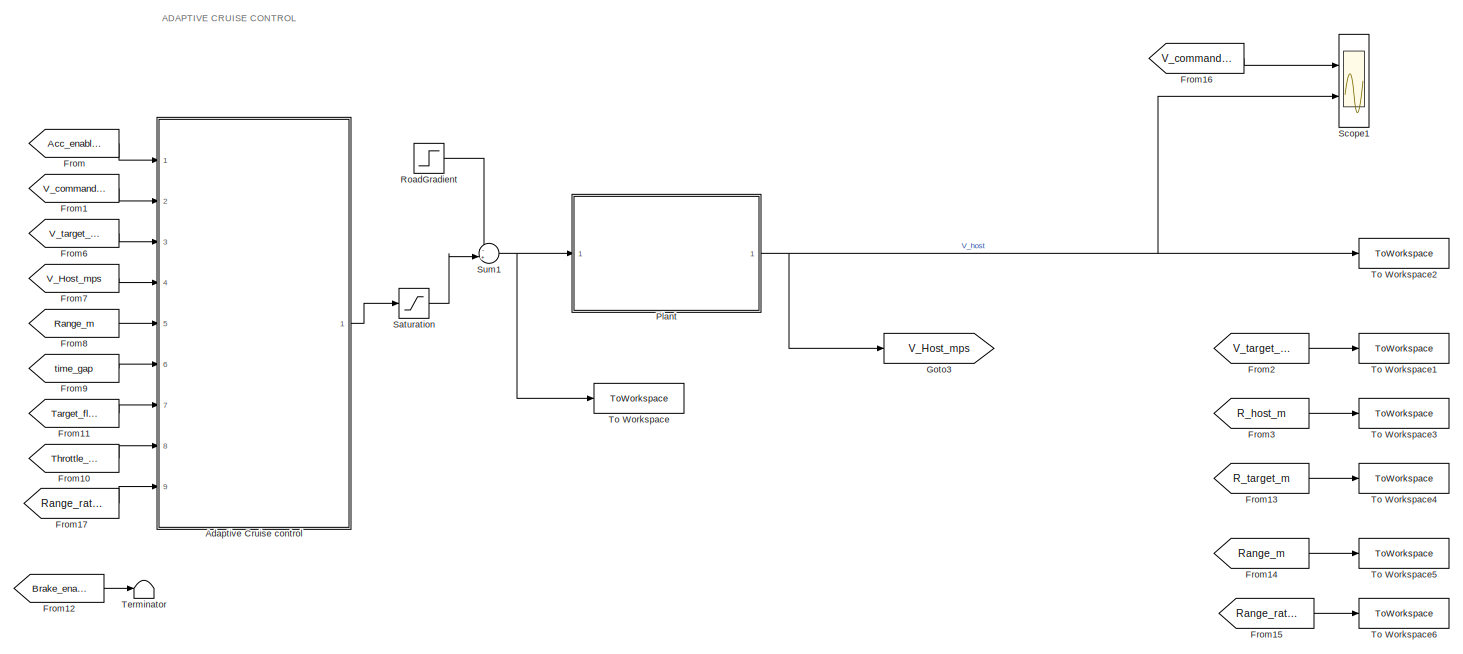
[diagram: root canvas - part 1/2, center side, full height]
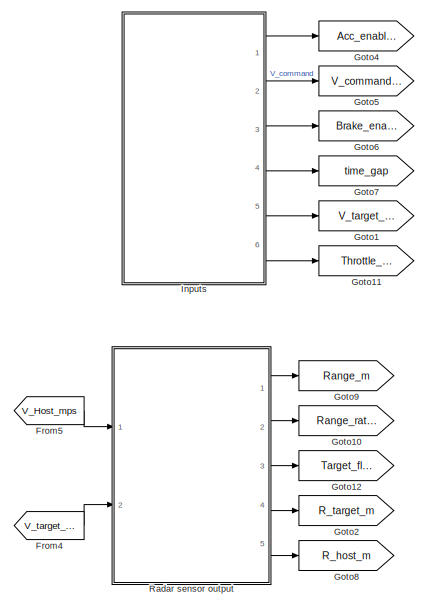
[diagram: root canvas - part 2/2, left side, full height]
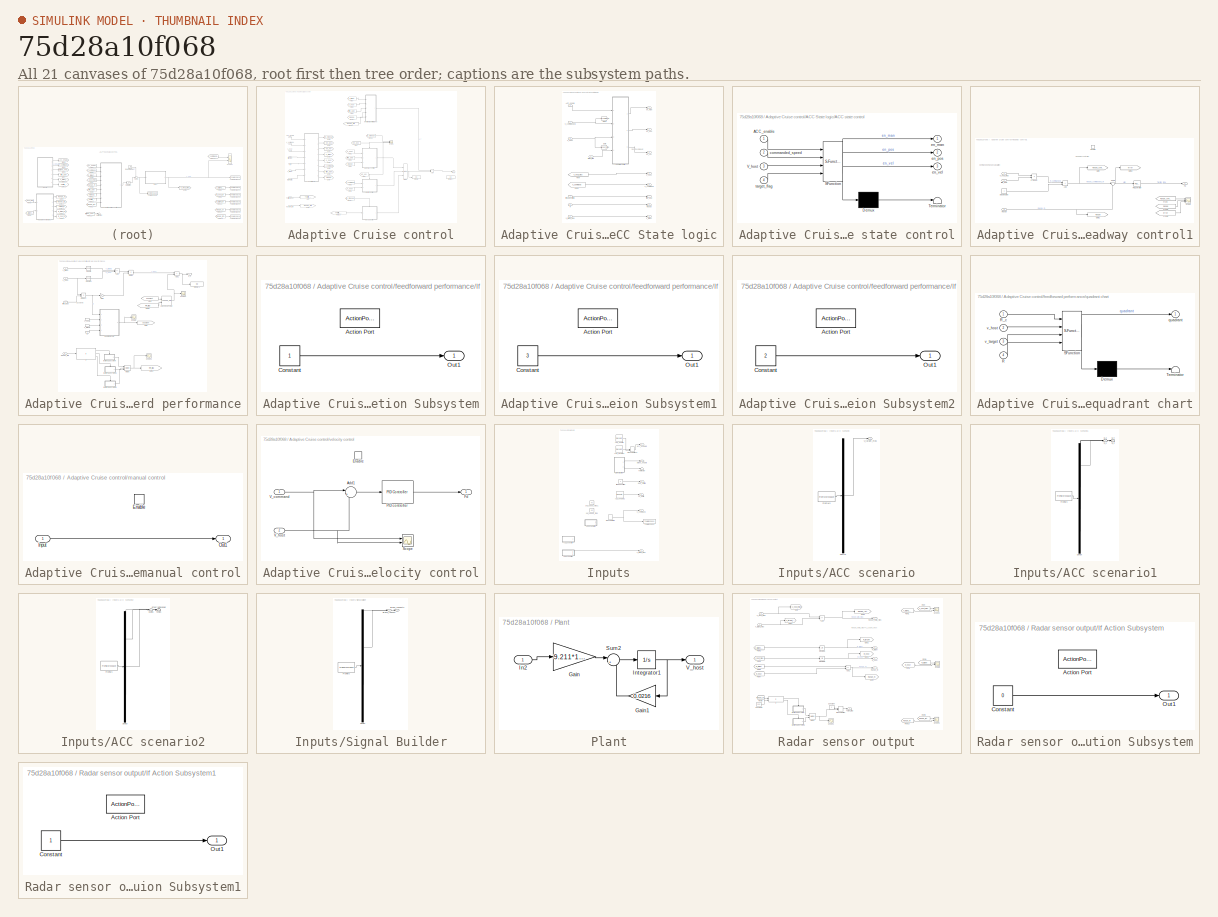
[diagram: thumbnail index - all 21 canvases of the model, root first then tree order]
MODEL slx_75d28a10f068
KIND model
CONFIG AbsTol = auto
CONFIG EnableMultiTasking = off
CONFIG FixedStep = auto
CONFIG MaxStep = auto
CONFIG MinStep = auto
CONFIG RelTol = 1e-3
CONFIG SampleTimeConstraint = Unconstrained
CONFIG SolverName = FixedStepAuto
CONFIG StartTime = 0.0
CONFIG StopTime = 500
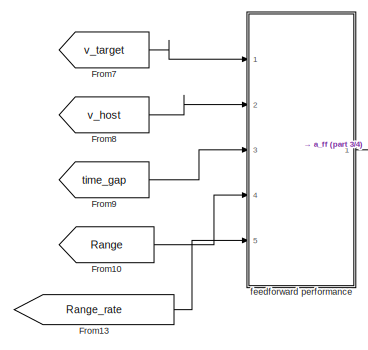
[diagram: Adaptive Cruise control - part 1/4, top center region]
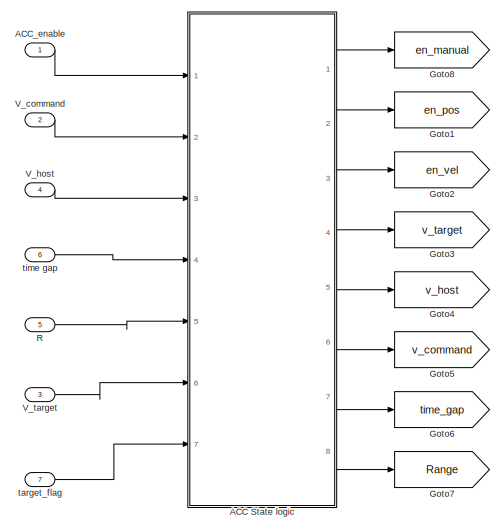
[diagram: Adaptive Cruise control - part 2/4, middle left region]
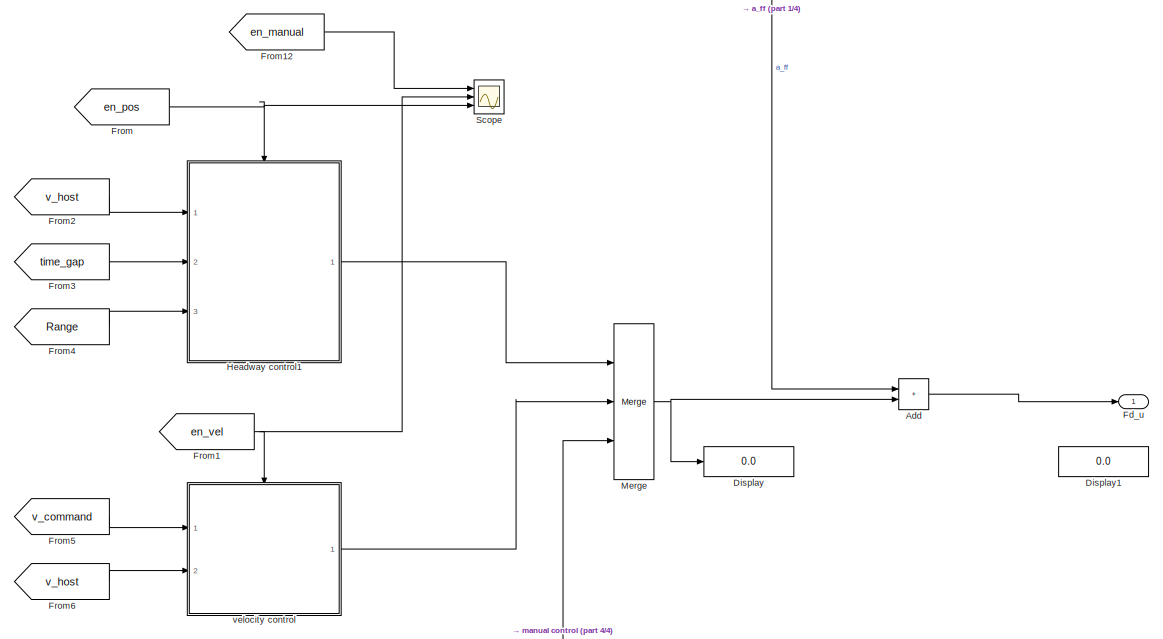
[diagram: Adaptive Cruise control - part 3/4, middle right region]
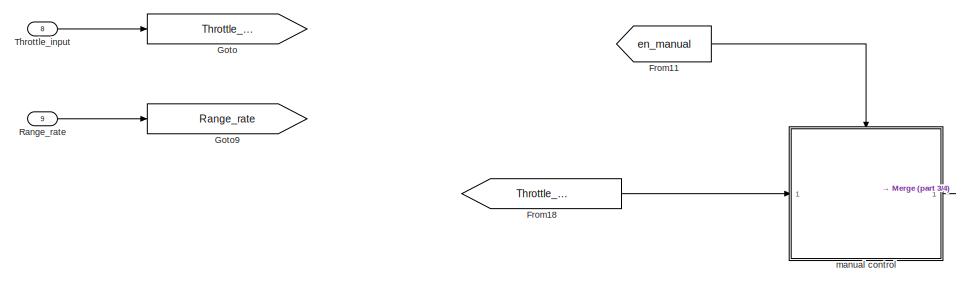
[diagram: Adaptive Cruise control - part 4/4, bottom left region]
BLOCK [SubSystem] Adaptive Cruise control
  Ports = [9, 1]
  RequestExecContextInheritance = off
BLOCK [SubSystem] Adaptive Cruise control/ACC State logic
  Ports = [7, 8]
  RequestExecContextInheritance = off
BLOCK [SubSystem] Adaptive Cruise control/ACC State logic/ACC state control
  ErrorFcn = Stateflow.Translate.translate
  PermitHierarchicalResolution = ExplicitOnly
  Ports = [4, 3]
  RequestExecContextInheritance = off
  SFBlockType = Chart
  TreatAsAtomicUnit = on
BLOCK [Demux] Adaptive Cruise control/ACC State logic/ACC state control/ Demux 
  Outputs = 1
  Ports = [1, 1]
BLOCK [S-Function] Adaptive Cruise control/ACC State logic/ACC state control/ SFunction 
  EnableBusSupport = on
  FunctionName = sf_sfun
  PortCounts = [4 4]
  Ports = [4, 4]
  SFcnIsStateOwnerBlock = off
  SFunctionDeploymentMode = off
  Tag = Stateflow S-Function 3
BLOCK [Terminator] Adaptive Cruise control/ACC State logic/ACC state control/ Terminator 
BLOCK [Inport] Adaptive Cruise control/ACC State logic/ACC state control/ACC_enable
BLOCK [Inport] Adaptive Cruise control/ACC State logic/ACC state control/V_host
  Port = 3
BLOCK [Inport] Adaptive Cruise control/ACC State logic/ACC state control/commanded_speed
  Port = 2
BLOCK [Outport] Adaptive Cruise control/ACC State logic/ACC state control/en_man
BLOCK [Outport] Adaptive Cruise control/ACC State logic/ACC state control/en_pos
  Port = 2
BLOCK [Outport] Adaptive Cruise control/ACC State logic/ACC state control/en_vel
  Port = 3
BLOCK [Inport] Adaptive Cruise control/ACC State logic/ACC state control/target_flag
  Port = 4
BLOCK [Inport] Adaptive Cruise control/ACC State logic/ACC_enable
BLOCK [From] Adaptive Cruise control/ACC State logic/From
  GotoTag = V_host_mps
BLOCK [From] Adaptive Cruise control/ACC State logic/From1
  GotoTag = V_command
BLOCK [Goto] Adaptive Cruise control/ACC State logic/Goto
  GotoTag = V_host_mps
BLOCK [Goto] Adaptive Cruise control/ACC State logic/Goto1
  GotoTag = V_command
BLOCK [Inport] Adaptive Cruise control/ACC State logic/R
  Port = 5
BLOCK [Outport] Adaptive Cruise control/ACC State logic/Range
  Port = 8
BLOCK [Inport] Adaptive Cruise control/ACC State logic/V_commanded
  Port = 2
BLOCK [Inport] Adaptive Cruise control/ACC State logic/V_host
  Port = 3
BLOCK [Inport] Adaptive Cruise control/ACC State logic/V_target_mps
  Port = 6
BLOCK [Outport] Adaptive Cruise control/ACC State logic/en_man
BLOCK [Outport] Adaptive Cruise control/ACC State logic/en_pos
  Port = 2
BLOCK [Outport] Adaptive Cruise control/ACC State logic/en_vel
  Port = 3
BLOCK [Inport] Adaptive Cruise control/ACC State logic/target_flag
  Port = 7
BLOCK [Inport] Adaptive Cruise control/ACC State logic/time gap setting
  Port = 4
BLOCK [Outport] Adaptive Cruise control/ACC State logic/time_gap
  Port = 7
BLOCK [Outport] Adaptive Cruise control/ACC State logic/v_command
  Port = 6
BLOCK [Outport] Adaptive Cruise control/ACC State logic/v_host
  Port = 5
BLOCK [Outport] Adaptive Cruise control/ACC State logic/v_target
  Port = 4
BLOCK [Inport] Adaptive Cruise control/ACC_enable
BLOCK [Sum] Adaptive Cruise control/Add
  IconShape = rectangular
  Ports = [2, 1]
BLOCK [Display] Adaptive Cruise control/Display
  Decimation = 1
  Ports = [1]
BLOCK [Display] Adaptive Cruise control/Display1
  Decimation = 1
  Ports = [1]
BLOCK [Outport] Adaptive Cruise control/Fd_u
BLOCK [From] Adaptive Cruise control/From
  GotoTag = en_pos
BLOCK [From] Adaptive Cruise control/From1
  GotoTag = en_vel
BLOCK [From] Adaptive Cruise control/From10
  GotoTag = Range
BLOCK [From] Adaptive Cruise control/From11
  GotoTag = en_manual
BLOCK [From] Adaptive Cruise control/From12
  GotoTag = en_manual
BLOCK [From] Adaptive Cruise control/From13
  GotoTag = Range_rate
BLOCK [From] Adaptive Cruise control/From18
  GotoTag = Throttle_input
BLOCK [From] Adaptive Cruise control/From2
  GotoTag = v_host
BLOCK [From] Adaptive Cruise control/From3
  GotoTag = time_gap
BLOCK [From] Adaptive Cruise control/From4
  GotoTag = Range
BLOCK [From] Adaptive Cruise control/From5
  GotoTag = v_command
BLOCK [From] Adaptive Cruise control/From6
  GotoTag = v_host
BLOCK [From] Adaptive Cruise control/From7
  GotoTag = v_target
BLOCK [From] Adaptive Cruise control/From8
  GotoTag = v_host
BLOCK [From] Adaptive Cruise control/From9
  GotoTag = time_gap
BLOCK [Goto] Adaptive Cruise control/Goto
  GotoTag = Throttle_input
BLOCK [Goto] Adaptive Cruise control/Goto1
  GotoTag = en_pos
BLOCK [Goto] Adaptive Cruise control/Goto2
  GotoTag = en_vel
BLOCK [Goto] Adaptive Cruise control/Goto3
  GotoTag = v_target
BLOCK [Goto] Adaptive Cruise control/Goto4
  GotoTag = v_host
BLOCK [Goto] Adaptive Cruise control/Goto5
  GotoTag = v_command
BLOCK [Goto] Adaptive Cruise control/Goto6
  GotoTag = time_gap
BLOCK [Goto] Adaptive Cruise control/Goto7
  GotoTag = Range
BLOCK [Goto] Adaptive Cruise control/Goto8
  GotoTag = en_manual
BLOCK [Goto] Adaptive Cruise control/Goto9
  GotoTag = Range_rate
BLOCK [SubSystem] Adaptive Cruise control/Headway control1
  Ports = [3, 1, 1]
  RequestExecContextInheritance = off
BLOCK [Sum] Adaptive Cruise control/Headway control1/Add
  IconShape = rectangular
  Ports = [2, 1]
BLOCK [EnablePort] Adaptive Cruise control/Headway control1/Enable
  Ports = []
BLOCK [Outport] Adaptive Cruise control/Headway control1/Fd
BLOCK [From] Adaptive Cruise control/Headway control1/From
  GotoTag = Range_commanded_m
BLOCK [From] Adaptive Cruise control/Headway control1/From1
  GotoTag = Range
BLOCK [From] Adaptive Cruise control/Headway control1/From2
  GotoTag = error
BLOCK [Goto] Adaptive Cruise control/Headway control1/Goto
  GotoTag = Range_commanded_m
BLOCK [Goto] Adaptive Cruise control/Headway control1/Goto1
  GotoTag = Range
BLOCK [Goto] Adaptive Cruise control/Headway control1/Goto2
  GotoTag = error
BLOCK [Reference] Adaptive Cruise control/Headway control1/PID Controller  REF=pid_lib/PID Controller
  Ports = [1, 1]
  SourceBlock = pid_lib/PID Controller
  SourceProductBaseCode = SL
  SourceType = PID 1dof
BLOCK [Product] Adaptive Cruise control/Headway control1/Product
  Ports = [2, 1]
BLOCK [Inport] Adaptive Cruise control/Headway control1/Range
  Port = 3
BLOCK [Scope] Adaptive Cruise control/Headway control1/Scope
  Floating = off
  NumInputPorts = 3
  Ports = [3]
  ScopeSpecificationString = Simulink.scopes.TimeScopeBlockCfg('CurrentConfiguration', extmgr.ConfigurationSet(extmgr.Configuration('Core','General UI',true),extmgr.Configuration('Core','Source UI',true),extmgr.Configuration('Sources','WiredSimulink',true,'DataLoggingVariableName','ScopeData2'),extmgr.Configuration('Visuals','Time Domain',true,'SerializedDisplays',{struct('MinYLimReal','44.41404','MaxYLimReal','164.08132','YL...<+3460ch>
BLOCK [Sum] Adaptive Cruise control/Headway control1/Sum3
  Inputs = |-+
  Ports = [2, 1]
BLOCK [Inport] Adaptive Cruise control/Headway control1/V_host_mps
BLOCK [Constant] Adaptive Cruise control/Headway control1/stopping dist
BLOCK [Inport] Adaptive Cruise control/Headway control1/time_gap
  Port = 2
BLOCK [Merge] Adaptive Cruise control/Merge
  Inputs = 3
  Ports = [3, 1]
BLOCK [Inport] Adaptive Cruise control/R
  Port = 5
BLOCK [Inport] Adaptive Cruise control/Range_rate
  Port = 9
BLOCK [Scope] Adaptive Cruise control/Scope
  Floating = off
  NumInputPorts = 3
  Ports = [3]
  ScopeSpecificationString = Simulink.scopes.TimeScopeBlockCfg('CurrentConfiguration', extmgr.ConfigurationSet(extmgr.Configuration('Core','General UI',true),extmgr.Configuration('Core','Source UI',true),extmgr.Configuration('Sources','WiredSimulink',true,'DataLoggingVariableName','ScopeData1'),extmgr.Configuration('Visuals','Time Domain',true,'SerializedDisplays',{struct('MinYLimReal','-0.125','MaxYLimReal','1.125','YLabelRe...<+2091ch>
BLOCK [Inport] Adaptive Cruise control/Throttle_input
  Port = 8
BLOCK [Inport] Adaptive Cruise control/V_command
  Port = 2
BLOCK [Inport] Adaptive Cruise control/V_host
  Port = 4
BLOCK [Inport] Adaptive Cruise control/V_target
  Port = 3
BLOCK [SubSystem] Adaptive Cruise control/feedforward performance
  Ports = [5, 1]
  RequestExecContextInheritance = off
BLOCK [Lookup_n-D] Adaptive Cruise control/feedforward performance/2-D Lookup Table
  BreakpointsForDimension1 = [1,2,3,4]
  BreakpointsForDimension2 = [1,2,3]
  InputPortMap = u0,u1
  InternalRulePriority = Speed
  Ports = [2, 1]
  RndMeth = Simplest
  Table = reshape([10,15,10,20,30,19,18,38,50,20,23,43],4,3)
BLOCK [Sum] Adaptive Cruise control/feedforward performance/Add
  IconShape = rectangular
  Inputs = +-
  Ports = [2, 1]
BLOCK [Sum] Adaptive Cruise control/feedforward performance/Add1
  IconShape = rectangular
  Ports = [2, 1]
BLOCK [Display] Adaptive Cruise control/feedforward performance/Display1
  Decimation = 1
  Ports = [1]
BLOCK [Product] Adaptive Cruise control/feedforward performance/Divide
  Inputs = */
  Ports = [2, 1]
BLOCK [From] Adaptive Cruise control/feedforward performance/From
  GotoTag = quadrant
BLOCK [From] Adaptive Cruise control/feedforward performance/From1
  GotoTag = RR_flag
BLOCK [Gain] Adaptive Cruise control/feedforward performance/Gain
  Gain = 2
BLOCK [Goto] Adaptive Cruise control/feedforward performance/Goto
  GotoTag = quadrant
BLOCK [Goto] Adaptive Cruise control/feedforward performance/Goto1
  GotoTag = RR_flag
BLOCK [If] Adaptive Cruise control/feedforward performance/If
  ElseIfExpressions = u1< 5
  IfExpression = u1 > 10
  Ports = [1, 3]
BLOCK [SubSystem] Adaptive Cruise control/feedforward performance/If Action Subsystem
  Ports = [0, 1, 0, 0, 0, 0, 0, 1]
  RequestExecContextInheritance = off
  TreatAsAtomicUnit = on
BLOCK [ActionPort] Adaptive Cruise control/feedforward performance/If Action Subsystem/Action Port
  ActionPortLabel = if(u1 > 10)
BLOCK [Constant] Adaptive Cruise control/feedforward performance/If Action Subsystem/Constant
BLOCK [Outport] Adaptive Cruise control/feedforward performance/If Action Subsystem/Out1
BLOCK [SubSystem] Adaptive Cruise control/feedforward performance/If Action Subsystem1
  Ports = [0, 1, 0, 0, 0, 0, 0, 1]
  RequestExecContextInheritance = off
  TreatAsAtomicUnit = on
BLOCK [ActionPort] Adaptive Cruise control/feedforward performance/If Action Subsystem1/Action Port
  ActionPortLabel = elseif(u1< 5)
BLOCK [Constant] Adaptive Cruise control/feedforward performance/If Action Subsystem1/Constant
  Value = 3
BLOCK [Outport] Adaptive Cruise control/feedforward performance/If Action Subsystem1/Out1
BLOCK [SubSystem] Adaptive Cruise control/feedforward performance/If Action Subsystem2
  Ports = [0, 1, 0, 0, 0, 0, 0, 1]
  RequestExecContextInheritance = off
  TreatAsAtomicUnit = on
BLOCK [ActionPort] Adaptive Cruise control/feedforward performance/If Action Subsystem2/Action Port
  ActionPortLabel = else
BLOCK [Constant] Adaptive Cruise control/feedforward performance/If Action Subsystem2/Constant
  Value = 2
BLOCK [Outport] Adaptive Cruise control/feedforward performance/If Action Subsystem2/Out1
BLOCK [Merge] Adaptive Cruise control/feedforward performance/Merge
  Inputs = 3
  Ports = [3, 1]
BLOCK [Product] Adaptive Cruise control/feedforward performance/Product
  Ports = [2, 1]
BLOCK [Inport] Adaptive Cruise control/feedforward performance/R
  Port = 4
BLOCK [Inport] Adaptive Cruise control/feedforward performance/Range_rate
  Port = 5
BLOCK [Scope] Adaptive Cruise control/feedforward performance/Scope
  Floating = off
  NumInputPorts = 1
  Ports = [1]
  ScopeSpecificationString = Simulink.scopes.TimeScopeBlockCfg('CurrentConfiguration', extmgr.ConfigurationSet(extmgr.Configuration('Core','General UI',true),extmgr.Configuration('Core','Source UI',true),extmgr.Configuration('Sources','WiredSimulink',true,'DataLoggingVariableName','ScopeData3'),extmgr.Configuration('Visuals','Time Domain',true,'SerializedDisplays',{struct('MinYLimReal','0.625','MaxYLimReal','4.375','YLabelRea...<+1374ch>
BLOCK [Scope] Adaptive Cruise control/feedforward performance/Scope1
  Floating = off
  NumInputPorts = 1
  Ports = [1]
  ScopeSpecificationString = Simulink.scopes.TimeScopeBlockCfg('CurrentConfiguration', extmgr.ConfigurationSet(extmgr.Configuration('Core','General UI',true),extmgr.Configuration('Core','Source UI',true),extmgr.Configuration('Sources','WiredSimulink',true,'DataLoggingVariableName','ScopeData2'),extmgr.Configuration('Visuals','Time Domain',true,'SerializedDisplays',{struct('MinYLimReal','2.00000','MaxYLimReal','22.00000','YLab...<+1377ch>
BLOCK [Scope] Adaptive Cruise control/feedforward performance/Scope2
  Floating = off
  NumInputPorts = 1
  Ports = [1]
  ScopeSpecificationString = Simulink.scopes.TimeScopeBlockCfg('CurrentConfiguration', extmgr.ConfigurationSet(extmgr.Configuration('Core','General UI',true),extmgr.Configuration('Core','Source UI',true),extmgr.Configuration('Sources','WiredSimulink',true,'DataLoggingVariableName','ScopeData3'),extmgr.Configuration('Visuals','Time Domain',true,'SerializedDisplays',{struct('MinYLimReal','0.75','MaxYLimReal','3.25','YLabelReal'...<+1338ch>
BLOCK [Math] Adaptive Cruise control/feedforward performance/Square
  Operator = square
  Ports = [1, 1]
BLOCK [Math] Adaptive Cruise control/feedforward performance/Square1
  Operator = square
  Ports = [1, 1]
BLOCK [Outport] Adaptive Cruise control/feedforward performance/a_ff
BLOCK [SubSystem] Adaptive Cruise control/feedforward performance/quadrant chart
  ErrorFcn = Stateflow.Translate.translate
  PermitHierarchicalResolution = ExplicitOnly
  Ports = [4, 1]
  RequestExecContextInheritance = off
  SFBlockType = Chart
  TreatAsAtomicUnit = on
BLOCK [Demux] Adaptive Cruise control/feedforward performance/quadrant chart/ Demux 
  Outputs = 1
  Ports = [1, 1]
BLOCK [S-Function] Adaptive Cruise control/feedforward performance/quadrant chart/ SFunction 
  EnableBusSupport = on
  FunctionName = sf_sfun
  PortCounts = [4 2]
  Ports = [4, 2]
  SFcnIsStateOwnerBlock = off
  SFunctionDeploymentMode = off
  Tag = Stateflow S-Function 1
BLOCK [Terminator] Adaptive Cruise control/feedforward performance/quadrant chart/ Terminator 
BLOCK [Inport] Adaptive Cruise control/feedforward performance/quadrant chart/R
  Port = 4
BLOCK [Inport] Adaptive Cruise control/feedforward performance/quadrant chart/R_c
BLOCK [Outport] Adaptive Cruise control/feedforward performance/quadrant chart/quadrant
BLOCK [Inport] Adaptive Cruise control/feedforward performance/quadrant chart/v_host
  Port = 2
BLOCK [Inport] Adaptive Cruise control/feedforward performance/quadrant chart/v_target
  Port = 3
BLOCK [Inport] Adaptive Cruise control/feedforward performance/time_gap
  Port = 3
BLOCK [Inport] Adaptive Cruise control/feedforward performance/v_host
  Port = 2
BLOCK [InportShadow] Adaptive Cruise control/feedforward performance/v_host1
  Port = 2
BLOCK [Inport] Adaptive Cruise control/feedforward performance/v_target
BLOCK [InportShadow] Adaptive Cruise control/feedforward performance/v_target1
BLOCK [SubSystem] Adaptive Cruise control/manual control
  Ports = [1, 1, 1]
  RequestExecContextInheritance = off
BLOCK [EnablePort] Adaptive Cruise control/manual control/Enable
  Ports = []
BLOCK [Inport] Adaptive Cruise control/manual control/Input
BLOCK [Outport] Adaptive Cruise control/manual control/Out1
BLOCK [Inport] Adaptive Cruise control/target_flag
  Port = 7
BLOCK [Inport] Adaptive Cruise control/time gap
  Port = 6
BLOCK [SubSystem] Adaptive Cruise control/velocity control
  Ports = [2, 1, 1]
  RequestExecContextInheritance = off
BLOCK [Sum] Adaptive Cruise control/velocity control/Add1
  Inputs = |+-
  Ports = [2, 1]
BLOCK [EnablePort] Adaptive Cruise control/velocity control/Enable
  Ports = []
BLOCK [Outport] Adaptive Cruise control/velocity control/Fd
BLOCK [Reference] Adaptive Cruise control/velocity control/PID controller  REF=pid_lib/PID Controller
  Ports = [1, 1]
  SourceBlock = pid_lib/PID Controller
  SourceProductBaseCode = SL
  SourceType = PID 1dof
BLOCK [Scope] Adaptive Cruise control/velocity control/Scope
  Floating = off
  NumInputPorts = 2
  Ports = [2]
  ScopeSpecificationString = Simulink.scopes.TimeScopeBlockCfg('CurrentConfiguration', extmgr.ConfigurationSet(extmgr.Configuration('Core','General UI',true),extmgr.Configuration('Core','Source UI',true),extmgr.Configuration('Sources','WiredSimulink',true,'DataLoggingVariableName','ScopeData1'),extmgr.Configuration('Visuals','Time Domain',true,'SerializedDisplays',{struct('MinYLimReal','13.17869','MaxYLimReal','42.52145','YLa...<+1810ch>
BLOCK [Inport] Adaptive Cruise control/velocity control/V_command
BLOCK [Inport] Adaptive Cruise control/velocity control/V_host
  Port = 2
BLOCK [From] From
  GotoTag = Acc_enabled
BLOCK [From] From1
  GotoTag = V_command_mps
BLOCK [From] From10
  GotoTag = Throttle_input
BLOCK [From] From11
  GotoTag = Target_flag
BLOCK [From] From12
  GotoTag = Brake_enabled
BLOCK [From] From13
  GotoTag = R_target_m
BLOCK [From] From14
  GotoTag = Range_m
BLOCK [From] From15
  GotoTag = Range_rate_mps
BLOCK [From] From16
  GotoTag = V_command_mps
BLOCK [From] From17
  GotoTag = Range_rate_mps
BLOCK [From] From2
  GotoTag = V_target_mps
BLOCK [From] From3
  GotoTag = R_host_m
BLOCK [From] From4
  GotoTag = V_target_mps
BLOCK [From] From5
  GotoTag = V_Host_mps
BLOCK [From] From6
  GotoTag = V_target_mps
BLOCK [From] From7
  GotoTag = V_Host_mps
BLOCK [From] From8
  GotoTag = Range_m
BLOCK [From] From9
  GotoTag = time_gap
BLOCK [Goto] Goto1
  GotoTag = V_target_mps
BLOCK [Goto] Goto10
  GotoTag = Range_rate_mps
BLOCK [Goto] Goto11
  GotoTag = Throttle_input
BLOCK [Goto] Goto12
  GotoTag = Target_flag
BLOCK [Goto] Goto2
  GotoTag = R_target_m
BLOCK [Goto] Goto3
  GotoTag = V_Host_mps
BLOCK [Goto] Goto4
  GotoTag = Acc_enabled
BLOCK [Goto] Goto5
  GotoTag = V_command_mps
BLOCK [Goto] Goto6
  GotoTag = Brake_enabled
BLOCK [Goto] Goto7
  GotoTag = time_gap
BLOCK [Goto] Goto8
  GotoTag = R_host_m
BLOCK [Goto] Goto9
  GotoTag = Range_m
BLOCK [SubSystem] Inputs
  Ports = [0, 6]
  RequestExecContextInheritance = off
BLOCK [SubSystem] Inputs/ACC scenario
  ClipboardFcn = sigbuilder_block('clipboard');
  CloseFcn = sigbuilder_block('close');
  ContinueFcn = sigbuilder_block('continue');
  CopyFcn = sigbuilder_block('copy');
  DeleteFcn = sigbuilder_block('delete');
  LoadFcn = sigbuilder_block('load');
  MaskHideContents = on
  ModelCloseFcn = sigbuilder_block('modelClose');
  NameChangeFcn = sigbuilder_block('namechange');
  OpenFcn = sigbuilder_block('open',[5.4 44.4 1141.2 541.8 ]);
  PauseFcn = sigbuilder_block('pause');
  Ports = [0, 1]
  PreSaveFcn = sigbuilder_block('preSave');
  RequestExecContextInheritance = off
  StartFcn = sigbuilder_block('start');
  StopFcn = sigbuilder_block('stop');
  Tag = STV Subsys
BLOCK [Demux] Inputs/ACC scenario/Demux
  DisplayOption = none
  Outputs = 1
  Ports = [1, 1]
  Tag = STV Demux
BLOCK [FromWorkspace] Inputs/ACC scenario/FromWs
  Tag = STV FromWs
  VariableName = tuvar
BLOCK [Outport] Inputs/ACC scenario/V_target_mps
  Tag = STV Outport
BLOCK [SubSystem] Inputs/ACC scenario1
  ClipboardFcn = sigbuilder_block('clipboard');
  CloseFcn = sigbuilder_block('close');
  ContinueFcn = sigbuilder_block('continue');
  CopyFcn = sigbuilder_block('copy');
  DeleteFcn = sigbuilder_block('delete');
  LoadFcn = sigbuilder_block('load');
  MaskHideContents = on
  ModelCloseFcn = sigbuilder_block('modelClose');
  NameChangeFcn = sigbuilder_block('namechange');
  OpenFcn = sigbuilder_block('open',[12.75 109.5 1141.5 542.25 ]);
  PauseFcn = sigbuilder_block('pause');
  Ports = [0, 4]
  PreSaveFcn = sigbuilder_block('preSave');
  RequestExecContextInheritance = off
  StartFcn = sigbuilder_block('start');
  StopFcn = sigbuilder_block('stop');
  Tag = STV Subsys
BLOCK [Demux] Inputs/ACC scenario1/Demux
  DisplayOption = none
  Ports = [1, 4]
  Tag = STV Demux
BLOCK [FromWorkspace] Inputs/ACC scenario1/FromWs
  Tag = STV FromWs
  VariableName = tuvar
BLOCK [Outport] Inputs/ACC scenario1/Q_1
  Tag = STV Outport
BLOCK [Outport] Inputs/ACC scenario1/Q_2
  Port = 2
  Tag = STV Outport
BLOCK [Outport] Inputs/ACC scenario1/Q_3
  Port = 3
  Tag = STV Outport
BLOCK [Outport] Inputs/ACC scenario1/Q_4
  Port = 4
  Tag = STV Outport
BLOCK [SubSystem] Inputs/ACC scenario2
  ClipboardFcn = sigbuilder_block('clipboard');
  CloseFcn = sigbuilder_block('close');
  ContinueFcn = sigbuilder_block('continue');
  CopyFcn = sigbuilder_block('copy');
  DeleteFcn = sigbuilder_block('delete');
  LoadFcn = sigbuilder_block('load',[5.4 44.4 1141.2 541.8 ]);
  MaskHideContents = on
  ModelCloseFcn = sigbuilder_block('modelClose');
  NameChangeFcn = sigbuilder_block('namechange');
  OpenFcn = sigbuilder_block('open',[5.4 44.4 1141.2 541.8 ]);
  PauseFcn = sigbuilder_block('pause');
  Ports = [0, 3]
  PreSaveFcn = sigbuilder_block('preSave');
  RequestExecContextInheritance = off
  StartFcn = sigbuilder_block('start');
  StopFcn = sigbuilder_block('stop');
  Tag = STV Subsys
BLOCK [Outport] Inputs/ACC scenario2/35 mps
  Tag = STV Outport
BLOCK [Outport] Inputs/ACC scenario2/40mps
  Port = 2
  Tag = STV Outport
BLOCK [Demux] Inputs/ACC scenario2/Demux
  DisplayOption = none
  Outputs = 3
  Ports = [1, 3]
  Tag = STV Demux
BLOCK [FromWorkspace] Inputs/ACC scenario2/FromWs
  Tag = STV FromWs
  VariableName = tuvar
BLOCK [Outport] Inputs/ACC scenario2/driver ramps down 
  Port = 3
  Tag = STV Outport
BLOCK [Reference] Inputs/ACC_enable  REF=simulink/Sources/Repeating
Sequence
  Ports = [0, 1]
  SourceBlock = simulink/Sources/Repeating\nSequence
  SourceProductBaseCode = SL
  SourceType = Repeating table
BLOCK [Reference] Inputs/ACC_enable1  REF=simulink/Sources/Repeating
Sequence
  Ports = [0, 1]
  SourceBlock = simulink/Sources/Repeating\nSequence
  SourceProductBaseCode = SL
  SourceType = Repeating table
BLOCK [Reference] Inputs/ACC_enable2  REF=simulink/Sources/Repeating
Sequence
  Ports = [0, 1]
  SourceBlock = simulink/Sources/Repeating\nSequence
  SourceProductBaseCode = SL
  SourceType = Repeating table
BLOCK [Outport] Inputs/Fd_throttle
  Port = 6
BLOCK [ManualSwitch] Inputs/Manual Switch
BLOCK [ManualSwitch] Inputs/Manual Switch1
BLOCK [SubSystem] Inputs/Signal Builder
  ClipboardFcn = sigbuilder_block('clipboard');
  CloseFcn = sigbuilder_block('close');
  ContinueFcn = sigbuilder_block('continue');
  CopyFcn = sigbuilder_block('copy');
  DeleteFcn = sigbuilder_block('delete');
  LoadFcn = sigbuilder_block('load');
  MaskHideContents = on
  ModelCloseFcn = sigbuilder_block('modelClose');
  NameChangeFcn = sigbuilder_block('namechange');
  OpenFcn = sigbuilder_block('open',[305.4 42.6 814.8 400.2 ]);
  PauseFcn = sigbuilder_block('pause');
  Ports = [0, 2]
  PreSaveFcn = sigbuilder_block('preSave');
  RequestExecContextInheritance = off
  StartFcn = sigbuilder_block('start');
  StopFcn = sigbuilder_block('stop');
  Tag = STV Subsys
BLOCK [Outport] Inputs/Signal Builder/Brake_request
  Tag = STV Outport
BLOCK [Outport] Inputs/Signal Builder/Brake_request2
  Port = 2
  Tag = STV Outport
BLOCK [Demux] Inputs/Signal Builder/Demux
  DisplayOption = none
  Outputs = 2
  Ports = [1, 2]
  Tag = STV Demux
BLOCK [FromWorkspace] Inputs/Signal Builder/FromWs
  Tag = STV FromWs
  VariableName = tuvar
BLOCK [Terminator] Inputs/Terminator
BLOCK [ToWorkspace] Inputs/To Workspace
  FixptAsFi = on
  MaxDataPoints = inf
  Ports = [1]
  SampleTime = -1
  VariableName = v_command
BLOCK [Outport] Inputs/V_command
  Port = 2
BLOCK [Outport] Inputs/V_target_mps
  Port = 5
BLOCK [Outport] Inputs/acc_enabled
BLOCK [Outport] Inputs/brake_enable
  Port = 3
BLOCK [Outport] Inputs/gap_setting
  Port = 4
BLOCK [Constant] Inputs/set_speed_mps
  Value = 35
BLOCK [Constant] Inputs/set_speed_mps1
  Value = 40
BLOCK [Constant] Inputs/time-gap setting
  Value = 4
BLOCK [SubSystem] Plant
  Ports = [1, 1]
  RequestExecContextInheritance = off
BLOCK [Gain] Plant/Gain
  Gain = 9.211*1e-4
BLOCK [Gain] Plant/Gain1
  Gain = 0.0216
BLOCK [Inport] Plant/In2
BLOCK [Integrator] Plant/Integrator1
  InitialCondition = 25
  Ports = [1, 1]
BLOCK [Sum] Plant/Sum2
  Inputs = |+-
  Ports = [2, 1]
BLOCK [Outport] Plant/V_host
  VectorParamsAs1DForOutWhenUnconnected = off
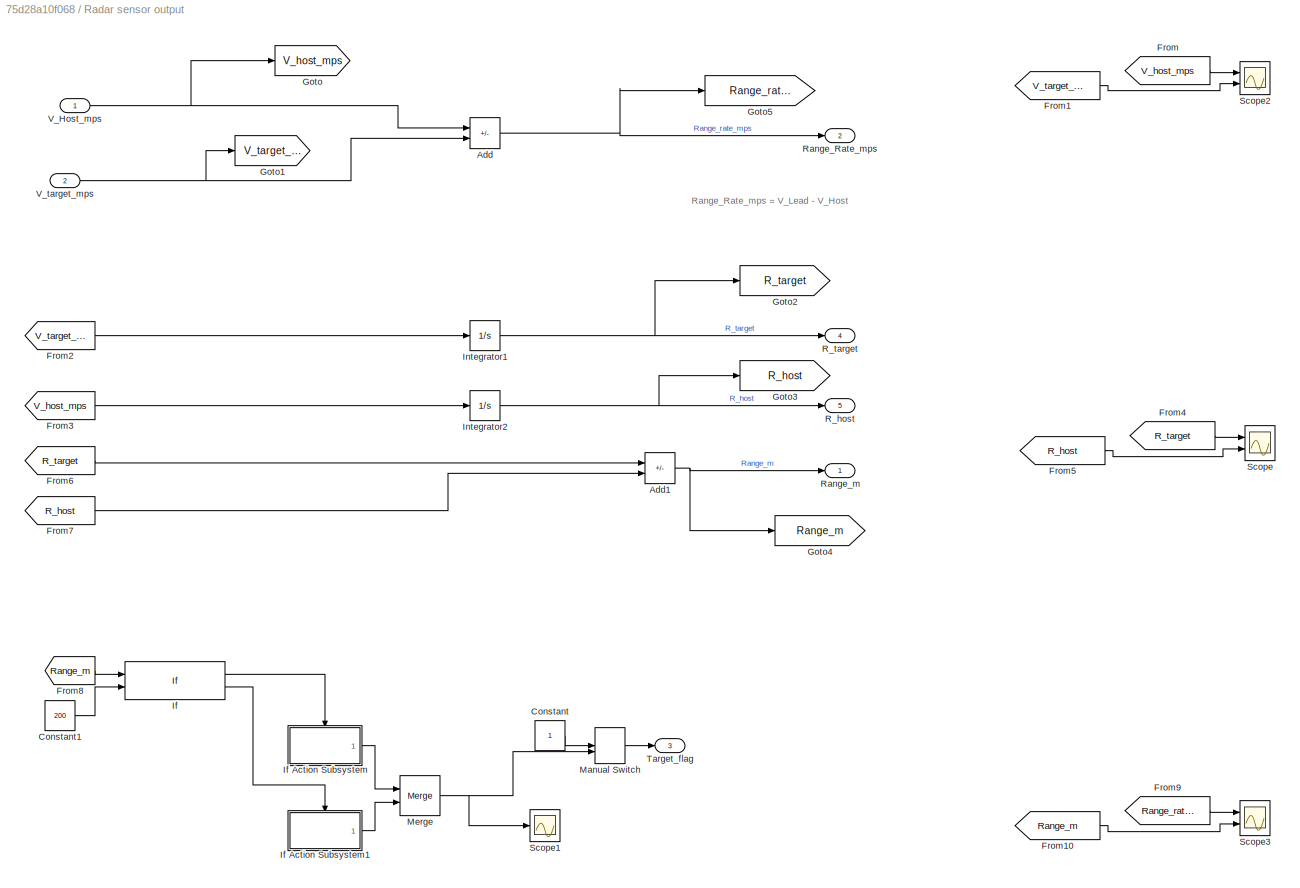
BLOCK [SubSystem] Radar sensor output
  Ports = [2, 5]
  RequestExecContextInheritance = off
BLOCK [Sum] Radar sensor output/Add
  IconShape = rectangular
  Inputs = -+
  Ports = [2, 1]
BLOCK [Sum] Radar sensor output/Add1
  IconShape = rectangular
  Inputs = +-
  Ports = [2, 1]
BLOCK [Constant] Radar sensor output/Constant
BLOCK [Constant] Radar sensor output/Constant1
  Value = 200
BLOCK [From] Radar sensor output/From
  GotoTag = V_host_mps
BLOCK [From] Radar sensor output/From1
  GotoTag = V_target_mps
BLOCK [From] Radar sensor output/From10
  GotoTag = Range_m
BLOCK [From] Radar sensor output/From2
  GotoTag = V_target_mps
BLOCK [From] Radar sensor output/From3
  GotoTag = V_host_mps
BLOCK [From] Radar sensor output/From4
  GotoTag = R_target
BLOCK [From] Radar sensor output/From5
  GotoTag = R_host
BLOCK [From] Radar sensor output/From6
  GotoTag = R_target
BLOCK [From] Radar sensor output/From7
  GotoTag = R_host
BLOCK [From] Radar sensor output/From8
  GotoTag = Range_m
BLOCK [From] Radar sensor output/From9
  GotoTag = Range_rate_mps
BLOCK [Goto] Radar sensor output/Goto
  GotoTag = V_host_mps
BLOCK [Goto] Radar sensor output/Goto1
  GotoTag = V_target_mps
BLOCK [Goto] Radar sensor output/Goto2
  GotoTag = R_target
BLOCK [Goto] Radar sensor output/Goto3
  GotoTag = R_host
BLOCK [Goto] Radar sensor output/Goto4
  GotoTag = Range_m
BLOCK [Goto] Radar sensor output/Goto5
  GotoTag = Range_rate_mps
BLOCK [If] Radar sensor output/If
  IfExpression = u1>u2
  NumInputs = 2
  Ports = [2, 2]
BLOCK [SubSystem] Radar sensor output/If Action Subsystem
  Ports = [0, 1, 0, 0, 0, 0, 0, 1]
  RequestExecContextInheritance = off
  TreatAsAtomicUnit = on
BLOCK [ActionPort] Radar sensor output/If Action Subsystem/Action Port
  ActionPortLabel = if(u1>u2)
BLOCK [Constant] Radar sensor output/If Action Subsystem/Constant
  Value = 0
BLOCK [Outport] Radar sensor output/If Action Subsystem/Out1
BLOCK [SubSystem] Radar sensor output/If Action Subsystem1
  Ports = [0, 1, 0, 0, 0, 0, 0, 1]
  RequestExecContextInheritance = off
  TreatAsAtomicUnit = on
BLOCK [ActionPort] Radar sensor output/If Action Subsystem1/Action Port
  ActionPortLabel = else
BLOCK [Constant] Radar sensor output/If Action Subsystem1/Constant
BLOCK [Outport] Radar sensor output/If Action Subsystem1/Out1
BLOCK [Integrator] Radar sensor output/Integrator1
  InitialCondition = 500
  Ports = [1, 1]
BLOCK [Integrator] Radar sensor output/Integrator2
  Ports = [1, 1]
BLOCK [ManualSwitch] Radar sensor output/Manual Switch
  CurrentSetting = 0
BLOCK [Merge] Radar sensor output/Merge
  Ports = [2, 1]
BLOCK [Outport] Radar sensor output/R_host
  Port = 5
BLOCK [Outport] Radar sensor output/R_target
  Port = 4
BLOCK [Outport] Radar sensor output/Range_Rate_mps
  Port = 2
BLOCK [Outport] Radar sensor output/Range_m
BLOCK [Scope] Radar sensor output/Scope
  Floating = off
  NumInputPorts = 2
  Ports = [2]
  ScopeSpecificationString = Simulink.scopes.TimeScopeBlockCfg('CurrentConfiguration', extmgr.ConfigurationSet(extmgr.Configuration('Core','General UI',true),extmgr.Configuration('Core','Source UI',true),extmgr.Configuration('Sources','WiredSimulink',true,'DataLoggingVariableName','ScopeData5'),extmgr.Configuration('Visuals','Time Domain',true,'SerializedDisplays',{struct('MinYLimReal','-2354.96875','MaxYLimReal','21194.71875...<+2054ch>
BLOCK [Scope] Radar sensor output/Scope1
  Floating = off
  NumInputPorts = 1
  Ports = [1]
  ScopeSpecificationString = Simulink.scopes.TimeScopeBlockCfg('CurrentConfiguration', extmgr.ConfigurationSet(extmgr.Configuration('Core','General UI',true),extmgr.Configuration('Core','Source UI',true),extmgr.Configuration('Sources','WiredSimulink',true,'DataLoggingVariableName','ScopeData4'),extmgr.Configuration('Visuals','Time Domain',true,'SerializedDisplays',{struct('MinYLimReal','-0.125','MaxYLimReal','1.125','YLabelRe...<+1387ch>
BLOCK [Scope] Radar sensor output/Scope2
  Floating = off
  NumInputPorts = 2
  Ports = [2]
  ScopeSpecificationString = Simulink.scopes.TimeScopeBlockCfg('CurrentConfiguration', extmgr.ConfigurationSet(extmgr.Configuration('Core','General UI',true),extmgr.Configuration('Core','Source UI',true),extmgr.Configuration('Sources','WiredSimulink',true,'DataLoggingVariableName','ScopeData6'),extmgr.Configuration('Visuals','Time Domain',true,'SerializedDisplays',{struct('MinYLimReal','17.70635','MaxYLimReal','40.6428','YLab...<+2573ch>
BLOCK [Scope] Radar sensor output/Scope3
  Floating = off
  NumInputPorts = 2
  Ports = [2]
  ScopeSpecificationString = Simulink.scopes.TimeScopeBlockCfg('CurrentConfiguration', extmgr.ConfigurationSet(extmgr.Configuration('Core','General UI',true),extmgr.Configuration('Core','Source UI',true),extmgr.Configuration('Sources','WiredSimulink',true,'DataLoggingVariableName','ScopeData1'),extmgr.Configuration('Visuals','Time Domain',true,'SerializedDisplays',{struct('MinYLimReal','-10.41329','MaxYLimReal','22.03799','YL...<+2716ch>
BLOCK [Outport] Radar sensor output/Target_flag
  Port = 3
BLOCK [Inport] Radar sensor output/V_Host_mps
BLOCK [Inport] Radar sensor output/V_target_mps
  Port = 2
BLOCK [Step] RoadGradient
  After = 200
  SampleTime = 0
  Time = 500
BLOCK [Saturate] Saturation
  LowerLimit = -1000
  UpperLimit = 1000
BLOCK [Scope] Scope1
  Floating = off
  NumInputPorts = 2
  Ports = [2]
  ScopeSpecificationString = Simulink.scopes.TimeScopeBlockCfg('CurrentConfiguration', extmgr.ConfigurationSet(extmgr.Configuration('Core','General UI',true),extmgr.Configuration('Core','Source UI',true),extmgr.Configuration('Sources','WiredSimulink',true,'DataLoggingVariableName','ScopeData3'),extmgr.Configuration('Visuals','Time Domain',true,'SerializedDisplays',{struct('MinYLimReal','18.03348','MaxYLimReal','40.37379','YLa...<+1988ch>
BLOCK [Sum] Sum1
  Inputs = -+|
  Ports = [2, 1]
BLOCK [Terminator] Terminator
BLOCK [ToWorkspace] To Workspace
  FixptAsFi = on
  MaxDataPoints = inf
  Ports = [1]
  SampleTime = -1
  VariableName = control_in
BLOCK [ToWorkspace] To Workspace1
  FixptAsFi = on
  MaxDataPoints = inf
  Ports = [1]
  SampleTime = -1
  VariableName = V_target_mps
BLOCK [ToWorkspace] To Workspace2
  FixptAsFi = on
  MaxDataPoints = inf
  Ports = [1]
  SampleTime = -1
  VariableName = v_host_mps
BLOCK [ToWorkspace] To Workspace3
  FixptAsFi = on
  MaxDataPoints = inf
  Ports = [1]
  SampleTime = -1
  VariableName = Host_position
BLOCK [ToWorkspace] To Workspace4
  FixptAsFi = on
  MaxDataPoints = inf
  Ports = [1]
  SampleTime = -1
  VariableName = Target_position
BLOCK [ToWorkspace] To Workspace5
  FixptAsFi = on
  MaxDataPoints = inf
  Ports = [1]
  SampleTime = -1
  VariableName = Range_m
BLOCK [ToWorkspace] To Workspace6
  FixptAsFi = on
  MaxDataPoints = inf
  Ports = [1]
  SampleTime = -1
  VariableName = Range_rate
ANNOTATION (root): ADAPTIVE CRUISE CONTROL
ANNOTATION Adaptive Cruise control/ACC State logic: modify the state logic
ANNOTATION Adaptive Cruise control/Headway control1: Headway controller
ANNOTATION Adaptive Cruise control/Headway control1: Commanded Range calculation
ANNOTATION Adaptive Cruise control/feedforward performance: Quadrants
ANNOTATION Radar sensor output: Range_Rate_mps = V_Lead - V_Host
LINE Adaptive Cruise control/ACC State logic/ACC state control:1 -> Adaptive Cruise control/ACC State logic/en_man:1
LINE Adaptive Cruise control/ACC State logic/ACC state control:2 -> Adaptive Cruise control/ACC State logic/en_pos:1
LINE Adaptive Cruise control/ACC State logic/ACC state control:3 -> Adaptive Cruise control/ACC State logic/en_vel:1
LINE Adaptive Cruise control/ACC State logic/ACC_enable:1 -> Adaptive Cruise control/ACC State logic/ACC state control:1
LINE Adaptive Cruise control/ACC State logic/From1:1 -> Adaptive Cruise control/ACC State logic/v_command:1
LINE Adaptive Cruise control/ACC State logic/From:1 -> Adaptive Cruise control/ACC State logic/v_host:1
LINE Adaptive Cruise control/ACC State logic/R:1 -> Adaptive Cruise control/ACC State logic/Range:1
NET Adaptive Cruise control/ACC State logic/V_commanded:1 -> Adaptive Cruise control/ACC State logic/ACC state control:2, Adaptive Cruise control/ACC State logic/Goto1:1
NET Adaptive Cruise control/ACC State logic/V_host:1 -> Adaptive Cruise control/ACC State logic/ACC state control:3, Adaptive Cruise control/ACC State logic/Goto:1
LINE Adaptive Cruise control/ACC State logic/V_target_mps:1 -> Adaptive Cruise control/ACC State logic/v_target:1
LINE Adaptive Cruise control/ACC State logic/target_flag:1 -> Adaptive Cruise control/ACC State logic/ACC state control:4
LINE Adaptive Cruise control/ACC State logic/time gap setting:1 -> Adaptive Cruise control/ACC State logic/time_gap:1
LINE Adaptive Cruise control/ACC State logic:1 -> Adaptive Cruise control/Goto8:1
LINE Adaptive Cruise control/ACC State logic:2 -> Adaptive Cruise control/Goto1:1
LINE Adaptive Cruise control/ACC State logic:3 -> Adaptive Cruise control/Goto2:1
LINE Adaptive Cruise control/ACC State logic:4 -> Adaptive Cruise control/Goto3:1
LINE Adaptive Cruise control/ACC State logic:5 -> Adaptive Cruise control/Goto4:1
LINE Adaptive Cruise control/ACC State logic:6 -> Adaptive Cruise control/Goto5:1
LINE Adaptive Cruise control/ACC State logic:7 -> Adaptive Cruise control/Goto6:1
LINE Adaptive Cruise control/ACC State logic:8 -> Adaptive Cruise control/Goto7:1
LINE Adaptive Cruise control/ACC_enable:1 -> Adaptive Cruise control/ACC State logic:1
LINE Adaptive Cruise control/Add:1 -> Adaptive Cruise control/Fd_u:1
LINE Adaptive Cruise control/From10:1 -> Adaptive Cruise control/feedforward performance:4
LINE Adaptive Cruise control/From11:1 -> Adaptive Cruise control/manual control:enable
LINE Adaptive Cruise control/From12:1 -> Adaptive Cruise control/Scope:1
LINE Adaptive Cruise control/From13:1 -> Adaptive Cruise control/feedforward performance:5
LINE Adaptive Cruise control/From18:1 -> Adaptive Cruise control/manual control:1
NET Adaptive Cruise control/From1:1 -> Adaptive Cruise control/Scope:2, Adaptive Cruise control/velocity control:enable
LINE Adaptive Cruise control/From2:1 -> Adaptive Cruise control/Headway control1:1
LINE Adaptive Cruise control/From3:1 -> Adaptive Cruise control/Headway control1:2
LINE Adaptive Cruise control/From4:1 -> Adaptive Cruise control/Headway control1:3
LINE Adaptive Cruise control/From5:1 -> Adaptive Cruise control/velocity control:1
LINE Adaptive Cruise control/From6:1 -> Adaptive Cruise control/velocity control:2
LINE Adaptive Cruise control/From7:1 -> Adaptive Cruise control/feedforward performance:1
LINE Adaptive Cruise control/From8:1 -> Adaptive Cruise control/feedforward performance:2
LINE Adaptive Cruise control/From9:1 -> Adaptive Cruise control/feedforward performance:3
NET Adaptive Cruise control/From:1 -> Adaptive Cruise control/Headway control1:enable, Adaptive Cruise control/Scope:3
NET Adaptive Cruise control/Headway control1/Add:1 -> Adaptive Cruise control/Headway control1/Goto:1, Adaptive Cruise control/Headway control1/Sum3:1
LINE Adaptive Cruise control/Headway control1/From1:1 -> Adaptive Cruise control/Headway control1/Scope:2
LINE Adaptive Cruise control/Headway control1/From2:1 -> Adaptive Cruise control/Headway control1/Scope:3
LINE Adaptive Cruise control/Headway control1/From:1 -> Adaptive Cruise control/Headway control1/Scope:1
LINE Adaptive Cruise control/Headway control1/PID Controller:1 -> Adaptive Cruise control/Headway control1/Fd:1
LINE Adaptive Cruise control/Headway control1/Product:1 -> Adaptive Cruise control/Headway control1/Add:1
NET Adaptive Cruise control/Headway control1/Range:1 -> Adaptive Cruise control/Headway control1/Goto1:1, Adaptive Cruise control/Headway control1/Sum3:2
NET Adaptive Cruise control/Headway control1/Sum3:1 -> Adaptive Cruise control/Headway control1/Goto2:1, Adaptive Cruise control/Headway control1/PID Controller:1
LINE Adaptive Cruise control/Headway control1/V_host_mps:1 -> Adaptive Cruise control/Headway control1/Product:1
LINE Adaptive Cruise control/Headway control1/stopping dist:1 -> Adaptive Cruise control/Headway control1/Add:2
LINE Adaptive Cruise control/Headway control1/time_gap:1 -> Adaptive Cruise control/Headway control1/Product:2
LINE Adaptive Cruise control/Headway control1:1 -> Adaptive Cruise control/Merge:1
NET Adaptive Cruise control/Merge:1 -> Adaptive Cruise control/Add:2, Adaptive Cruise control/Display:1
LINE Adaptive Cruise control/R:1 -> Adaptive Cruise control/ACC State logic:5
LINE Adaptive Cruise control/Range_rate:1 -> Adaptive Cruise control/Goto9:1
LINE Adaptive Cruise control/Throttle_input:1 -> Adaptive Cruise control/Goto:1
LINE Adaptive Cruise control/V_command:1 -> Adaptive Cruise control/ACC State logic:2
LINE Adaptive Cruise control/V_host:1 -> Adaptive Cruise control/ACC State logic:3
LINE Adaptive Cruise control/V_target:1 -> Adaptive Cruise control/ACC State logic:6
NET Adaptive Cruise control/feedforward performance/2-D Lookup Table:1 -> Adaptive Cruise control/feedforward performance/Add1:2, Adaptive Cruise control/feedforward performance/Scope1:1
NET Adaptive Cruise control/feedforward performance/Add1:1 -> Adaptive Cruise control/feedforward performance/Display1:1, Adaptive Cruise control/feedforward performance/a_ff:1
LINE Adaptive Cruise control/feedforward performance/Add:1 -> Adaptive Cruise control/feedforward performance/Divide:1
LINE Adaptive Cruise control/feedforward performance/Divide:1 -> Adaptive Cruise control/feedforward performance/Add1:1
LINE Adaptive Cruise control/feedforward performance/From1:1 -> Adaptive Cruise control/feedforward performance/2-D Lookup Table:2
LINE Adaptive Cruise control/feedforward performance/From:1 -> Adaptive Cruise control/feedforward performance/2-D Lookup Table:1
LINE Adaptive Cruise control/feedforward performance/Gain:1 -> Adaptive Cruise control/feedforward performance/Divide:2
LINE Adaptive Cruise control/feedforward performance/If Action Subsystem/Constant:1 -> Adaptive Cruise control/feedforward performance/If Action Subsystem/Out1:1
LINE Adaptive Cruise control/feedforward performance/If Action Subsystem1/Constant:1 -> Adaptive Cruise control/feedforward performance/If Action Subsystem1/Out1:1
LINE Adaptive Cruise control/feedforward performance/If Action Subsystem1:1 -> Adaptive Cruise control/feedforward performance/Merge:2
LINE Adaptive Cruise control/feedforward performance/If Action Subsystem2/Constant:1 -> Adaptive Cruise control/feedforward performance/If Action Subsystem2/Out1:1
LINE Adaptive Cruise control/feedforward performance/If Action Subsystem2:1 -> Adaptive Cruise control/feedforward performance/Merge:3
LINE Adaptive Cruise control/feedforward performance/If Action Subsystem:1 -> Adaptive Cruise control/feedforward performance/Merge:1
LINE Adaptive Cruise control/feedforward performance/If:1 -> Adaptive Cruise control/feedforward performance/If Action Subsystem:ifaction
LINE Adaptive Cruise control/feedforward performance/If:2 -> Adaptive Cruise control/feedforward performance/If Action Subsystem1:ifaction
LINE Adaptive Cruise control/feedforward performance/If:3 -> Adaptive Cruise control/feedforward performance/If Action Subsystem2:ifaction
NET Adaptive Cruise control/feedforward performance/Merge:1 -> Adaptive Cruise control/feedforward performance/Goto1:1, Adaptive Cruise control/feedforward performance/Scope2:1
NET Adaptive Cruise control/feedforward performance/Product:1 -> Adaptive Cruise control/feedforward performance/Gain:1, Adaptive Cruise control/feedforward performance/quadrant chart:1
LINE Adaptive Cruise control/feedforward performance/R:1 -> Adaptive Cruise control/feedforward performance/quadrant chart:4
LINE Adaptive Cruise control/feedforward performance/Range_rate:1 -> Adaptive Cruise control/feedforward performance/If:1
LINE Adaptive Cruise control/feedforward performance/Square1:1 -> Adaptive Cruise control/feedforward performance/Add:2
LINE Adaptive Cruise control/feedforward performance/Square:1 -> Adaptive Cruise control/feedforward performance/Add:1
NET Adaptive Cruise control/feedforward performance/quadrant chart:1 -> Adaptive Cruise control/feedforward performance/Goto:1, Adaptive Cruise control/feedforward performance/Scope:1
LINE Adaptive Cruise control/feedforward performance/time_gap:1 -> Adaptive Cruise control/feedforward performance/Product:2
LINE Adaptive Cruise control/feedforward performance/v_host1:1 -> Adaptive Cruise control/feedforward performance/quadrant chart:2
NET Adaptive Cruise control/feedforward performance/v_host:1 -> Adaptive Cruise control/feedforward performance/Product:1, Adaptive Cruise control/feedforward performance/Square1:1
LINE Adaptive Cruise control/feedforward performance/v_target1:1 -> Adaptive Cruise control/feedforward performance/quadrant chart:3
LINE Adaptive Cruise control/feedforward performance/v_target:1 -> Adaptive Cruise control/feedforward performance/Square:1
LINE Adaptive Cruise control/feedforward performance:1 -> Adaptive Cruise control/Add:1
LINE Adaptive Cruise control/manual control/Input:1 -> Adaptive Cruise control/manual control/Out1:1
LINE Adaptive Cruise control/manual control:1 -> Adaptive Cruise control/Merge:3
LINE Adaptive Cruise control/target_flag:1 -> Adaptive Cruise control/ACC State logic:7
LINE Adaptive Cruise control/time gap:1 -> Adaptive Cruise control/ACC State logic:4
LINE Adaptive Cruise control/velocity control/Add1:1 -> Adaptive Cruise control/velocity control/PID controller:1
LINE Adaptive Cruise control/velocity control/PID controller:1 -> Adaptive Cruise control/velocity control/Fd:1
NET Adaptive Cruise control/velocity control/V_command:1 -> Adaptive Cruise control/velocity control/Add1:1, Adaptive Cruise control/velocity control/Scope:1
NET Adaptive Cruise control/velocity control/V_host:1 -> Adaptive Cruise control/velocity control/Add1:2, Adaptive Cruise control/velocity control/Scope:2
LINE Adaptive Cruise control/velocity control:1 -> Adaptive Cruise control/Merge:2
LINE Adaptive Cruise control:1 -> Saturation:1
LINE From10:1 -> Adaptive Cruise control:8
LINE From11:1 -> Adaptive Cruise control:7
LINE From12:1 -> Terminator:1
LINE From13:1 -> To Workspace4:1
LINE From14:1 -> To Workspace5:1
LINE From15:1 -> To Workspace6:1
LINE From16:1 -> Scope1:1
LINE From17:1 -> Adaptive Cruise control:9
LINE From1:1 -> Adaptive Cruise control:2
LINE From2:1 -> To Workspace1:1
LINE From3:1 -> To Workspace3:1
LINE From4:1 -> Radar sensor output:2
LINE From5:1 -> Radar sensor output:1
LINE From6:1 -> Adaptive Cruise control:3
LINE From7:1 -> Adaptive Cruise control:4
LINE From8:1 -> Adaptive Cruise control:5
LINE From9:1 -> Adaptive Cruise control:6
LINE From:1 -> Adaptive Cruise control:1
LINE Inputs/ACC scenario1:1 -> Inputs/V_target_mps:1
LINE Inputs/ACC_enable1:1 -> Inputs/Manual Switch1:2
LINE Inputs/ACC_enable2:1 -> Inputs/Fd_throttle:1
LINE Inputs/ACC_enable:1 -> Inputs/Manual Switch1:1
LINE Inputs/Manual Switch1:1 -> Inputs/acc_enabled:1
NET Inputs/Manual Switch:1 -> Inputs/To Workspace:1, Inputs/V_command:1
LINE Inputs/Signal Builder:1 -> Inputs/brake_enable:1
LINE Inputs/Signal Builder:2 -> Inputs/Terminator:1
LINE Inputs/time-gap setting:1 -> Inputs/gap_setting:1
LINE Inputs:1 -> Goto4:1
LINE Inputs:2 -> Goto5:1
LINE Inputs:3 -> Goto6:1
LINE Inputs:4 -> Goto7:1
LINE Inputs:5 -> Goto1:1
LINE Inputs:6 -> Goto11:1
LINE Plant/Gain1:1 -> Plant/Sum2:2
LINE Plant/Gain:1 -> Plant/Sum2:1
LINE Plant/In2:1 -> Plant/Gain:1
NET Plant/Integrator1:1 -> Plant/Gain1:1, Plant/V_host:1
LINE Plant/Sum2:1 -> Plant/Integrator1:1
NET Plant:1 -> Goto3:1, Scope1:2, To Workspace2:1
NET Radar sensor output/Add1:1 -> Radar sensor output/Goto4:1, Radar sensor output/Range_m:1
NET Radar sensor output/Add:1 -> Radar sensor output/Goto5:1, Radar sensor output/Range_Rate_mps:1
LINE Radar sensor output/Constant1:1 -> Radar sensor output/If:2
LINE Radar sensor output/Constant:1 -> Radar sensor output/Manual Switch:1
LINE Radar sensor output/From10:1 -> Radar sensor output/Scope3:2
LINE Radar sensor output/From1:1 -> Radar sensor output/Scope2:2
LINE Radar sensor output/From2:1 -> Radar sensor output/Integrator1:1
LINE Radar sensor output/From3:1 -> Radar sensor output/Integrator2:1
LINE Radar sensor output/From4:1 -> Radar sensor output/Scope:1
LINE Radar sensor output/From5:1 -> Radar sensor output/Scope:2
LINE Radar sensor output/From6:1 -> Radar sensor output/Add1:1
LINE Radar sensor output/From7:1 -> Radar sensor output/Add1:2
LINE Radar sensor output/From8:1 -> Radar sensor output/If:1
LINE Radar sensor output/From9:1 -> Radar sensor output/Scope3:1
LINE Radar sensor output/From:1 -> Radar sensor output/Scope2:1
LINE Radar sensor output/If Action Subsystem/Constant:1 -> Radar sensor output/If Action Subsystem/Out1:1
LINE Radar sensor output/If Action Subsystem1/Constant:1 -> Radar sensor output/If Action Subsystem1/Out1:1
LINE Radar sensor output/If Action Subsystem1:1 -> Radar sensor output/Merge:2
LINE Radar sensor output/If Action Subsystem:1 -> Radar sensor output/Merge:1
LINE Radar sensor output/If:1 -> Radar sensor output/If Action Subsystem:ifaction
LINE Radar sensor output/If:2 -> Radar sensor output/If Action Subsystem1:ifaction
NET Radar sensor output/Integrator1:1 -> Radar sensor output/Goto2:1, Radar sensor output/R_target:1
NET Radar sensor output/Integrator2:1 -> Radar sensor output/Goto3:1, Radar sensor output/R_host:1
LINE Radar sensor output/Manual Switch:1 -> Radar sensor output/Target_flag:1
NET Radar sensor output/Merge:1 -> Radar sensor output/Manual Switch:2, Radar sensor output/Scope1:1
NET Radar sensor output/V_Host_mps:1 -> Radar sensor output/Add:1, Radar sensor output/Goto:1
NET Radar sensor output/V_target_mps:1 -> Radar sensor output/Add:2, Radar sensor output/Goto1:1
LINE Radar sensor output:1 -> Goto9:1
LINE Radar sensor output:2 -> Goto10:1
LINE Radar sensor output:3 -> Goto12:1
LINE Radar sensor output:4 -> Goto2:1
LINE Radar sensor output:5 -> Goto8:1
LINE RoadGradient:1 -> Sum1:1
LINE Saturation:1 -> Sum1:2
NET Sum1:1 -> Plant:1, To Workspace:1
note: NET lines group one-source signal fan-out (src -> all destinations, sorted); 1:1 wires keep LINE
CHART Adaptive Cruise control/feedforward performance/quadrant chart states=4 transitions=9
  STATE_LABEL 'quadrant2\nentry:\nquadrant  = 2;'
  STATE_LABEL 'quadrant1\nentry:\nquadrant  = 1;'
  STATE_LABEL 'quadrant4\nentry:\nquadrant  = 4;'
  STATE_LABEL 'quadrant3\nentry:\nquadrant  = 3;'
CHART Adaptive Cruise control/ACC State logic/ACC state control states=3 transitions=7
  STATE_LABEL 'HeadwayControl\nentry: en_man=false;\n en_vel = false;\n en_pos = true;\n'
  STATE_LABEL 'Manual__\nentry: en_man=true;\n en_vel = false;\n en_pos = false;\n'
  STATE_LABEL 'VelocityControl_\nentry: en_man=false ;\n en_vel = true;\n en_pos = false;'
CHART  states=0 transitions=0
CHART  states=0 transitions=0
